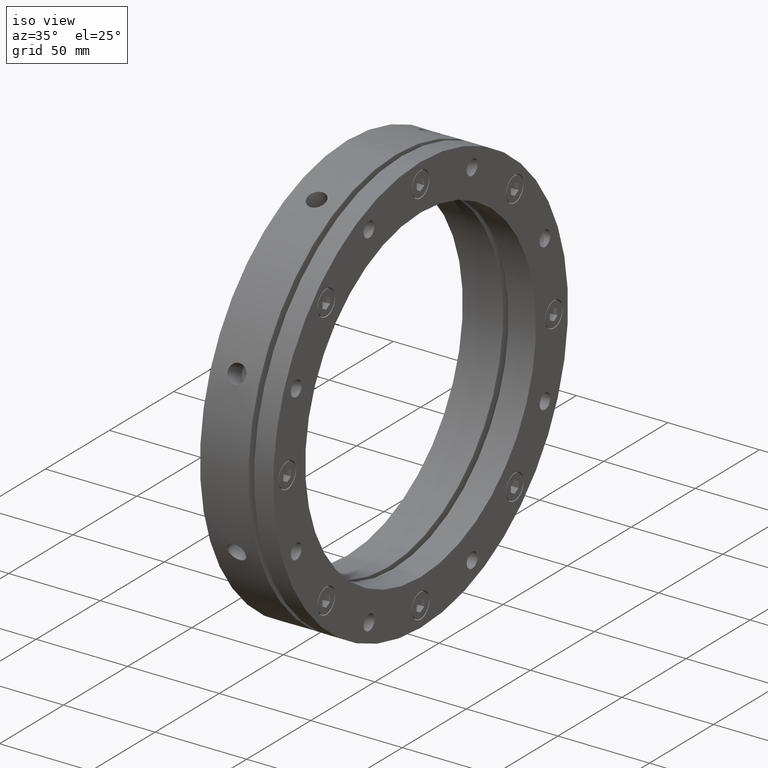
[diagram: clean part render]
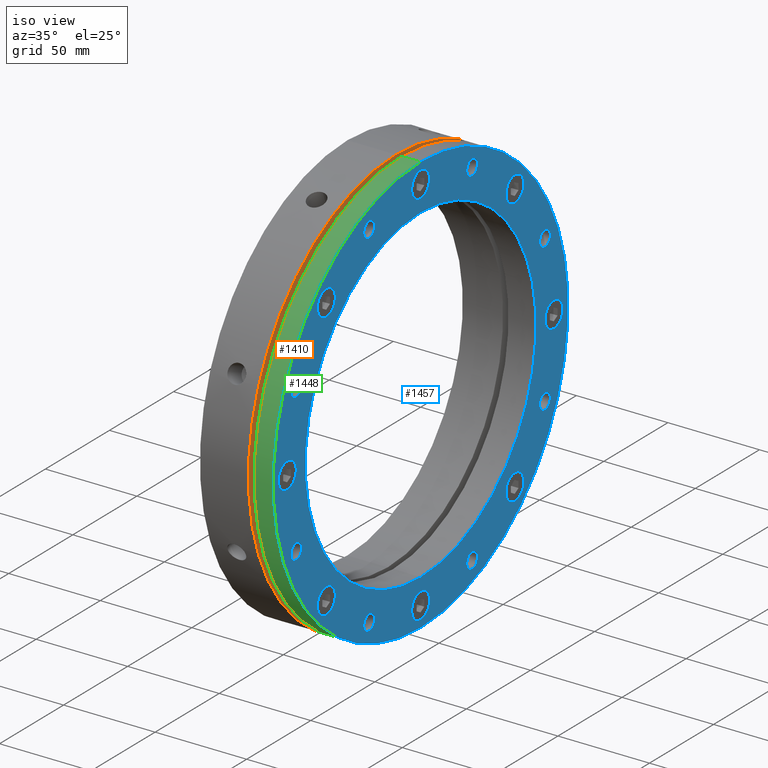
[diagram: same view with three faces highlighted in distinct colors, each labeled with its STEP entity id]
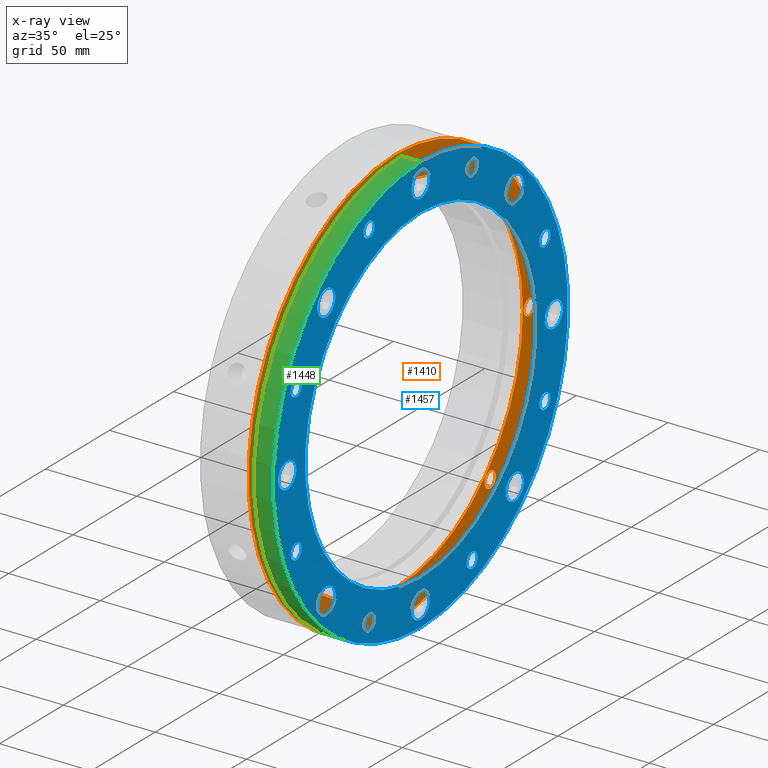
[diagram: x-ray of the same camera — body ghosted, the three highlighted faces saturated]
A machine part, iso view with three faces highlighted in distinct colors.
The next image is the same camera in x-ray (body ghosted, the three faces saturated) — at least one of them is partly hidden behind the body in this view.
Their STEP definitions:

[orange] entity #1410 — the highlighted planar face has unit normal (-1, 0, 0).
#317 = DIRECTION ( 'NONE',  ( -1.000000000000000000, 0.0000000000000000000, 0.0000000000000000000 ) ) ;
#319 = PLANE ( 'NONE',  #5216 ) ;
#321 = CARTESIAN_POINT ( 'NONE',  ( 26.49999999999996800, 107.0000000000000000, 0.0000000000000000000 ) ) ;
#323 = DIRECTION ( 'NONE',  ( 0.0000000000000000000, 0.0000000000000000000, 1.000000000000000000 ) ) ;
#1004 = CARTESIAN_POINT ( 'NONE',  ( 26.49999999999996800, 73.53910524340092500, -69.23910524340095700 ) ) ;
#1005 = CARTESIAN_POINT ( 'NONE',  ( 26.49999999999996800, 104.0000000000000100, 4.299999999999982900 ) ) ;
#1010 = CARTESIAN_POINT ( 'NONE',  ( 26.49999999999996800, 73.53910524340096800, 69.23910524340092800 ) ) ;
#1015 = CARTESIAN_POINT ( 'NONE',  ( 26.49999999999996800, 73.53910524340096800, 77.83910524340093700 ) ) ;
#1023 = CARTESIAN_POINT ( 'NONE',  ( 26.49999999999996800, -73.53910524340095400, -69.23910524340094200 ) ) ;
#1025 = CARTESIAN_POINT ( 'NONE',  ( 26.49999999999996800, -1.723697187636663600E-014, -99.70000000000001700 ) ) ;
#1032 = CARTESIAN_POINT ( 'NONE',  ( 26.49999999999996800, -73.53910524340095400, -77.83910524340095100 ) ) ;
#1033 = CARTESIAN_POINT ( 'NONE',  ( 26.49999999999996800, 0.0000000000000000000, -115.0000000000000000 ) ) ;
#1036 = CARTESIAN_POINT ( 'NONE',  ( 26.49999999999996800, 5.265981236333620400E-016, 108.3000000000000100 ) ) ;
#1054 = CIRCLE ( 'NONE', #4081, 4.299999999999998000 ) ;
#1055 = CIRCLE ( 'NONE', #4088, 4.299999999999999800 ) ;
#1064 = CIRCLE ( 'NONE', #5035, 4.299999999999998000 ) ;
#1111 = CIRCLE ( 'NONE', #4102, 4.299999999999998000 ) ;
#1114 = CIRCLE ( 'NONE', #4098, 4.299999999999998000 ) ;
#1126 = CIRCLE ( 'NONE', #4087, 4.299999999999999800 ) ;
#1130 = CIRCLE ( 'NONE', #4085, 4.299999999999998000 ) ;
#1134 = CIRCLE ( 'NONE', #4083, 4.299999999999998000 ) ;
#1136 = CIRCLE ( 'NONE', #3982, 4.299999999999998000 ) ;
#1137 = CIRCLE ( 'NONE', #3998, 115.0000000000000000 ) ;
#1176 = CIRCLE ( 'NONE', #3977, 115.0000000000000000 ) ;
#1332 = CIRCLE ( 'NONE', #4040, 4.299999999999999800 ) ;
#1410 = ADVANCED_FACE ( 'NONE', ( #5417, #5458, #5473, #5485, #5326, #5303, #5486, #5342, #5467, #5474 ), #319, .F. ) ;
#1614 = CIRCLE ( 'NONE', #3966, 4.299999999999999800 ) ;
#1734 = CARTESIAN_POINT ( 'NONE',  ( 26.49999999999996800, 0.0000000000000000000, 99.70000000000001700 ) ) ;
#1735 = CARTESIAN_POINT ( 'NONE',  ( 26.49999999999996800, 0.0000000000000000000, 99.00000000000000000 ) ) ;
#1739 = CARTESIAN_POINT ( 'NONE',  ( 26.49999999999996800, 1.212400331155879700E-014, -99.00000000000000000 ) ) ;
#1741 = CARTESIAN_POINT ( 'NONE',  ( 26.49999999999996800, 73.53910524340092500, -77.83910524340095100 ) ) ;
#1753 = CARTESIAN_POINT ( 'NONE',  ( 26.49999999999996800, 1.408343819019456100E-014, 115.0000000000000000 ) ) ;
#1766 = CARTESIAN_POINT ( 'NONE',  ( 26.49999999999996800, 104.0000000000000100, -4.300000000000017600 ) ) ;
#1767 = CARTESIAN_POINT ( 'NONE',  ( 26.49999999999996800, -73.53910524340094000, 77.83910524340095100 ) ) ;
#1771 = CARTESIAN_POINT ( 'NONE',  ( 26.49999999999996800, -73.53910524340094000, 69.23910524340095700 ) ) ;
#1772 = CARTESIAN_POINT ( 'NONE',  ( 26.49999999999996800, -1.776356999999999900E-014, -108.3000000000000100 ) ) ;
#1780 = CARTESIAN_POINT ( 'NONE',  ( 26.49999999999996800, -104.0000000000000100, 4.299999999999999800 ) ) ;
#1811 = CARTESIAN_POINT ( 'NONE',  ( 26.49999999999996800, 73.53910524340092500, -73.53910524340095400 ) ) ;
#1812 = DIRECTION ( 'NONE',  ( 1.000000000000000000, 0.0000000000000000000, 0.0000000000000000000 ) ) ;
#1813 = DIRECTION ( 'NONE',  ( 0.0000000000000000000, 0.0000000000000000000, -1.000000000000000000 ) ) ;
#1823 = CARTESIAN_POINT ( 'NONE',  ( 26.49999999999996800, -73.53910524340094000, 73.53910524340095400 ) ) ;
#1824 = DIRECTION ( 'NONE',  ( 1.000000000000000000, 0.0000000000000000000, 0.0000000000000000000 ) ) ;
#1825 = DIRECTION ( 'NONE',  ( 0.0000000000000000000, 0.0000000000000000000, -1.000000000000000000 ) ) ;
#1835 = CARTESIAN_POINT ( 'NONE',  ( 26.49999999999996800, -73.53910524340095400, -73.53910524340094000 ) ) ;
#1836 = DIRECTION ( 'NONE',  ( 1.000000000000000000, 0.0000000000000000000, 0.0000000000000000000 ) ) ;
#1837 = DIRECTION ( 'NONE',  ( 0.0000000000000000000, 0.0000000000000000000, -1.000000000000000000 ) ) ;
#1866 = CARTESIAN_POINT ( 'NONE',  ( 26.49999999999996800, 104.0000000000000100, -1.776356999999999900E-014 ) ) ;
#1867 = DIRECTION ( 'NONE',  ( 1.000000000000000000, 0.0000000000000000000, 0.0000000000000000000 ) ) ;
#1868 = DIRECTION ( 'NONE',  ( 0.0000000000000000000, 0.0000000000000000000, -1.000000000000000000 ) ) ;
#1869 = CARTESIAN_POINT ( 'NONE',  ( 26.49999999999996800, -104.0000000000000100, 0.0000000000000000000 ) ) ;
#1870 = DIRECTION ( 'NONE',  ( 1.000000000000000000, 0.0000000000000000000, 0.0000000000000000000 ) ) ;
#1871 = DIRECTION ( 'NONE',  ( 0.0000000000000000000, 0.0000000000000000000, -1.000000000000000000 ) ) ;
#1875 = CARTESIAN_POINT ( 'NONE',  ( 26.49999999999996800, 0.0000000000000000000, 104.0000000000000100 ) ) ;
#1876 = DIRECTION ( 'NONE',  ( 1.000000000000000000, 0.0000000000000000000, 0.0000000000000000000 ) ) ;
#1877 = DIRECTION ( 'NONE',  ( 0.0000000000000000000, 0.0000000000000000000, -1.000000000000000000 ) ) ;
#1881 = CARTESIAN_POINT ( 'NONE',  ( 26.49999999999996800, -1.776356999999999900E-014, -104.0000000000000100 ) ) ;
#1882 = DIRECTION ( 'NONE',  ( 1.000000000000000000, 0.0000000000000000000, 0.0000000000000000000 ) ) ;
#1883 = DIRECTION ( 'NONE',  ( 0.0000000000000000000, 0.0000000000000000000, -1.000000000000000000 ) ) ;
#1887 = CARTESIAN_POINT ( 'NONE',  ( 26.49999999999996800, 73.53910524340096800, 73.53910524340092500 ) ) ;
#1888 = DIRECTION ( 'NONE',  ( 1.000000000000000000, 0.0000000000000000000, 0.0000000000000000000 ) ) ;
#1889 = DIRECTION ( 'NONE',  ( 0.0000000000000000000, 0.0000000000000000000, -1.000000000000000000 ) ) ;
#2187 = CARTESIAN_POINT ( 'NONE',  ( 26.49999999999996800, 104.0000000000000100, -1.776356999999999900E-014 ) ) ;
#2188 = DIRECTION ( 'NONE',  ( 1.000000000000000000, 0.0000000000000000000, 0.0000000000000000000 ) ) ;
#2189 = DIRECTION ( 'NONE',  ( 0.0000000000000000000, 0.0000000000000000000, -1.000000000000000000 ) ) ;
#2220 = CARTESIAN_POINT ( 'NONE',  ( 26.49999999999996800, -73.53910524340095400, -73.53910524340094000 ) ) ;
#2221 = DIRECTION ( 'NONE',  ( 1.000000000000000000, 0.0000000000000000000, 0.0000000000000000000 ) ) ;
#2222 = DIRECTION ( 'NONE',  ( 0.0000000000000000000, 0.0000000000000000000, -1.000000000000000000 ) ) ;
#2229 = CARTESIAN_POINT ( 'NONE',  ( 26.49999999999996800, 0.0000000000000000000, 104.0000000000000100 ) ) ;
#2230 = DIRECTION ( 'NONE',  ( 1.000000000000000000, 0.0000000000000000000, 0.0000000000000000000 ) ) ;
#2231 = DIRECTION ( 'NONE',  ( 0.0000000000000000000, 0.0000000000000000000, -1.000000000000000000 ) ) ;
#2251 = CARTESIAN_POINT ( 'NONE',  ( 26.49999999999996800, 73.53910524340092500, -73.53910524340095400 ) ) ;
#2252 = DIRECTION ( 'NONE',  ( 1.000000000000000000, 0.0000000000000000000, 0.0000000000000000000 ) ) ;
#2253 = DIRECTION ( 'NONE',  ( 0.0000000000000000000, 0.0000000000000000000, -1.000000000000000000 ) ) ;
#2267 = CARTESIAN_POINT ( 'NONE',  ( 26.49999999999996800, 0.0000000000000000000, 0.0000000000000000000 ) ) ;
#2268 = DIRECTION ( 'NONE',  ( 1.000000000000000000, -0.0000000000000000000, -0.0000000000000000000 ) ) ;
#2269 = DIRECTION ( 'NONE',  ( 0.0000000000000000000, 0.0000000000000000000, 1.000000000000000000 ) ) ;
#2270 = CARTESIAN_POINT ( 'NONE',  ( 26.49999999999996800, 0.0000000000000000000, 0.0000000000000000000 ) ) ;
#2271 = DIRECTION ( 'NONE',  ( 1.000000000000000000, -0.0000000000000000000, -0.0000000000000000000 ) ) ;
#2272 = DIRECTION ( 'NONE',  ( 0.0000000000000000000, 0.0000000000000000000, 1.000000000000000000 ) ) ;
#2393 = CARTESIAN_POINT ( 'NONE',  ( 26.49999999999996800, -73.53910524340094000, 73.53910524340095400 ) ) ;
#2394 = DIRECTION ( 'NONE',  ( 1.000000000000000000, 0.0000000000000000000, 0.0000000000000000000 ) ) ;
#2395 = DIRECTION ( 'NONE',  ( 0.0000000000000000000, 0.0000000000000000000, -1.000000000000000000 ) ) ;
#2475 = CARTESIAN_POINT ( 'NONE',  ( 26.49999999999996800, -1.776356999999999900E-014, -104.0000000000000100 ) ) ;
#2476 = DIRECTION ( 'NONE',  ( 1.000000000000000000, 0.0000000000000000000, 0.0000000000000000000 ) ) ;
#2477 = DIRECTION ( 'NONE',  ( 0.0000000000000000000, 0.0000000000000000000, -1.000000000000000000 ) ) ;
#2639 = CARTESIAN_POINT ( 'NONE',  ( 26.49999999999996800, 0.0000000000000000000, 0.0000000000000000000 ) ) ;
#2640 = DIRECTION ( 'NONE',  ( -1.000000000000000000, -0.0000000000000000000, -0.0000000000000000000 ) ) ;
#2641 = DIRECTION ( 'NONE',  ( 0.0000000000000000000, 0.0000000000000000000, -1.000000000000000000 ) ) ;
#2710 = CARTESIAN_POINT ( 'NONE',  ( 26.49999999999996800, 73.53910524340096800, 73.53910524340092500 ) ) ;
#2711 = DIRECTION ( 'NONE',  ( 1.000000000000000000, 0.0000000000000000000, 0.0000000000000000000 ) ) ;
#2712 = DIRECTION ( 'NONE',  ( 0.0000000000000000000, 0.0000000000000000000, -1.000000000000000000 ) ) ;
#2812 = CARTESIAN_POINT ( 'NONE',  ( 26.49999999999996800, 0.0000000000000000000, 0.0000000000000000000 ) ) ;
#2813 = DIRECTION ( 'NONE',  ( -1.000000000000000000, -0.0000000000000000000, -0.0000000000000000000 ) ) ;
#2814 = DIRECTION ( 'NONE',  ( 0.0000000000000000000, 0.0000000000000000000, -1.000000000000000000 ) ) ;
#3039 = CARTESIAN_POINT ( 'NONE',  ( 26.49999999999996800, -104.0000000000000100, 0.0000000000000000000 ) ) ;
#3040 = DIRECTION ( 'NONE',  ( 1.000000000000000000, 0.0000000000000000000, 0.0000000000000000000 ) ) ;
#3041 = DIRECTION ( 'NONE',  ( 0.0000000000000000000, 0.0000000000000000000, -1.000000000000000000 ) ) ;
#3560 = EDGE_LOOP ( 'NONE', ( #4585, #4662 ) ) ;
#3561 = EDGE_LOOP ( 'NONE', ( #4626, #4600 ) ) ;
#3562 = EDGE_LOOP ( 'NONE', ( #4580, #4627 ) ) ;
#3587 = EDGE_LOOP ( 'NONE', ( #4599, #4517 ) ) ;
#3708 = EDGE_LOOP ( 'NONE', ( #4620, #4467 ) ) ;
#3714 = EDGE_LOOP ( 'NONE', ( #4621, #4623 ) ) ;
#3718 = EDGE_LOOP ( 'NONE', ( #4611, #4536 ) ) ;
#3723 = EDGE_LOOP ( 'NONE', ( #4461, #4493 ) ) ;
#3802 = EDGE_LOOP ( 'NONE', ( #4595, #4531 ) ) ;
#3817 = EDGE_LOOP ( 'NONE', ( #4677, #4624 ) ) ;
#3966 = AXIS2_PLACEMENT_3D ( 'NONE', #3039, #3040, #3041 ) ;
#3977 = AXIS2_PLACEMENT_3D ( 'NONE', #2812, #2813, #2814 ) ;
#3982 = AXIS2_PLACEMENT_3D ( 'NONE', #2710, #2711, #2712 ) ;
#3998 = AXIS2_PLACEMENT_3D ( 'NONE', #2639, #2640, #2641 ) ;
#4001 = AXIS2_PLACEMENT_3D ( 'NONE', #2475, #2476, #2477 ) ;
#4009 = AXIS2_PLACEMENT_3D ( 'NONE', #2393, #2394, #2395 ) ;
#4027 = AXIS2_PLACEMENT_3D ( 'NONE', #2270, #2271, #2272 ) ;
#4028 = AXIS2_PLACEMENT_3D ( 'NONE', #2267, #2268, #2269 ) ;
#4030 = AXIS2_PLACEMENT_3D ( 'NONE', #2251, #2252, #2253 ) ;
#4034 = AXIS2_PLACEMENT_3D ( 'NONE', #2229, #2230, #2231 ) ;
#4036 = AXIS2_PLACEMENT_3D ( 'NONE', #2220, #2221, #2222 ) ;
#4040 = AXIS2_PLACEMENT_3D ( 'NONE', #2187, #2188, #2189 ) ;
#4081 = AXIS2_PLACEMENT_3D ( 'NONE', #1887, #1888, #1889 ) ;
#4083 = AXIS2_PLACEMENT_3D ( 'NONE', #1881, #1882, #1883 ) ;
#4085 = AXIS2_PLACEMENT_3D ( 'NONE', #1875, #1876, #1877 ) ;
#4087 = AXIS2_PLACEMENT_3D ( 'NONE', #1869, #1870, #1871 ) ;
#4088 = AXIS2_PLACEMENT_3D ( 'NONE', #1866, #1867, #1868 ) ;
#4098 = AXIS2_PLACEMENT_3D ( 'NONE', #1835, #1836, #1837 ) ;
#4102 = AXIS2_PLACEMENT_3D ( 'NONE', #1823, #1824, #1825 ) ;
#4452 = CIRCLE ( 'NONE', #4001, 4.299999999999998000 ) ;
#4458 = CIRCLE ( 'NONE', #4009, 4.299999999999998000 ) ;
#4461 = ORIENTED_EDGE ( 'NONE', *, *, #5542, .F. ) ;
#4467 = ORIENTED_EDGE ( 'NONE', *, *, #5645, .F. ) ;
#4493 = ORIENTED_EDGE ( 'NONE', *, *, #5707, .F. ) ;
#4517 = ORIENTED_EDGE ( 'NONE', *, *, #5653, .F. ) ;
#4531 = ORIENTED_EDGE ( 'NONE', *, *, #5618, .F. ) ;
#4536 = ORIENTED_EDGE ( 'NONE', *, *, #5633, .F. ) ;
#4580 = ORIENTED_EDGE ( 'NONE', *, *, #5540, .F. ) ;
#4585 = ORIENTED_EDGE ( 'NONE', *, *, #5537, .F. ) ;
#4595 = ORIENTED_EDGE ( 'NONE', *, *, #5536, .F. ) ;
#4599 = ORIENTED_EDGE ( 'NONE', *, *, #5654, .F. ) ;
#4600 = ORIENTED_EDGE ( 'NONE', *, *, #5688, .F. ) ;
#4611 = ORIENTED_EDGE ( 'NONE', *, *, #5526, .F. ) ;
#4620 = ORIENTED_EDGE ( 'NONE', *, *, #5517, .F. ) ;
#4621 = ORIENTED_EDGE ( 'NONE', *, *, #5544, .F. ) ;
#4623 = ORIENTED_EDGE ( 'NONE', *, *, #5743, .F. ) ;
#4624 = ORIENTED_EDGE ( 'NONE', *, *, #5756, .F. ) ;
#4626 = ORIENTED_EDGE ( 'NONE', *, *, #5522, .F. ) ;
#4627 = ORIENTED_EDGE ( 'NONE', *, *, #5637, .F. ) ;
#4662 = ORIENTED_EDGE ( 'NONE', *, *, #5792, .F. ) ;
#4677 = ORIENTED_EDGE ( 'NONE', *, *, #5717, .F. ) ;
#5035 = AXIS2_PLACEMENT_3D ( 'NONE', #1811, #1812, #1813 ) ;
#5216 = AXIS2_PLACEMENT_3D ( 'NONE', #321, #317, #323 ) ;
#5297 = VERTEX_POINT ( 'NONE', #1004 ) ;
#5298 = VERTEX_POINT ( 'NONE', #1005 ) ;
#5303 = FACE_BOUND ( 'NONE', #3723, .T. ) ;
#5304 = VERTEX_POINT ( 'NONE', #1010 ) ;
#5311 = VERTEX_POINT ( 'NONE', #1015 ) ;
#5321 = VERTEX_POINT ( 'NONE', #1023 ) ;
#5323 = VERTEX_POINT ( 'NONE', #1025 ) ;
#5326 = FACE_BOUND ( 'NONE', #3718, .T. ) ;
#5338 = VERTEX_POINT ( 'NONE', #1032 ) ;
#5339 = VERTEX_POINT ( 'NONE', #1033 ) ;
#5342 = FACE_BOUND ( 'NONE', #3802, .T. ) ;
#5343 = VERTEX_POINT ( 'NONE', #1036 ) ;
#5382 = VERTEX_POINT ( 'NONE', #5864 ) ;
#5390 = VERTEX_POINT ( 'NONE', #1734 ) ;
#5391 = VERTEX_POINT ( 'NONE', #1735 ) ;
#5398 = VERTEX_POINT ( 'NONE', #1739 ) ;
#5403 = VERTEX_POINT ( 'NONE', #1741 ) ;
#5417 = FACE_BOUND ( 'NONE', #3587, .T. ) ;
#5424 = VERTEX_POINT ( 'NONE', #1753 ) ;
#5451 = VERTEX_POINT ( 'NONE', #1766 ) ;
#5452 = VERTEX_POINT ( 'NONE', #1767 ) ;
#5458 = FACE_BOUND ( 'NONE', #3562, .T. ) ;
#5459 = VERTEX_POINT ( 'NONE', #1771 ) ;
#5460 = VERTEX_POINT ( 'NONE', #1772 ) ;
#5467 = FACE_BOUND ( 'NONE', #3714, .T. ) ;
#5473 = FACE_BOUND ( 'NONE', #3561, .T. ) ;
#5474 = FACE_OUTER_BOUND ( 'NONE', #3817, .T. ) ;
#5476 = VERTEX_POINT ( 'NONE', #1780 ) ;
#5485 = FACE_BOUND ( 'NONE', #3560, .T. ) ;
#5486 = FACE_BOUND ( 'NONE', #3708, .T. ) ;
#5517 = EDGE_CURVE ( 'NONE', #5403, #5297, #1064, .T. ) ;
#5522 = EDGE_CURVE ( 'NONE', #5459, #5452, #1111, .T. ) ;
#5526 = EDGE_CURVE ( 'NONE', #5338, #5321, #1114, .T. ) ;
#5536 = EDGE_CURVE ( 'NONE', #5451, #5298, #1055, .T. ) ;
#5537 = EDGE_CURVE ( 'NONE', #5382, #5476, #1126, .T. ) ;
#5540 = EDGE_CURVE ( 'NONE', #5390, #5343, #1130, .T. ) ;
#5542 = EDGE_CURVE ( 'NONE', #5460, #5323, #1134, .T. ) ;
#5544 = EDGE_CURVE ( 'NONE', #5304, #5311, #1054, .T. ) ;
#5618 = EDGE_CURVE ( 'NONE', #5298, #5451, #1332, .T. ) ;
#5633 = EDGE_CURVE ( 'NONE', #5321, #5338, #5871, .T. ) ;
#5637 = EDGE_CURVE ( 'NONE', #5343, #5390, #5890, .T. ) ;
#5645 = EDGE_CURVE ( 'NONE', #5297, #5403, #5917, .T. ) ;
#5653 = EDGE_CURVE ( 'NONE', #5398, #5391, #5876, .T. ) ;
#5654 = EDGE_CURVE ( 'NONE', #5391, #5398, #5874, .T. ) ;
#5688 = EDGE_CURVE ( 'NONE', #5452, #5459, #4458, .T. ) ;
#5707 = EDGE_CURVE ( 'NONE', #5323, #5460, #4452, .T. ) ;
#5717 = EDGE_CURVE ( 'NONE', #5339, #5424, #1137, .T. ) ;
#5743 = EDGE_CURVE ( 'NONE', #5311, #5304, #1136, .T. ) ;
#5756 = EDGE_CURVE ( 'NONE', #5424, #5339, #1176, .T. ) ;
#5792 = EDGE_CURVE ( 'NONE', #5476, #5382, #1614, .T. ) ;
#5864 = CARTESIAN_POINT ( 'NONE',  ( 26.49999999999996800, -104.0000000000000100, -4.299999999999999800 ) ) ;
#5871 = CIRCLE ( 'NONE', #4036, 4.299999999999998000 ) ;
#5874 = CIRCLE ( 'NONE', #4027, 99.00000000000000000 ) ;
#5876 = CIRCLE ( 'NONE', #4028, 99.00000000000000000 ) ;
#5890 = CIRCLE ( 'NONE', #4034, 4.299999999999998000 ) ;
#5917 = CIRCLE ( 'NONE', #4030, 4.299999999999998000 ) ;

[blue] entity #1457 — the highlighted planar face has unit normal (1, 0, 0).
#1 = CIRCLE ( 'NONE', #3944, 115.0000000000000000 ) ;
#2 = CIRCLE ( 'NONE', #3938, 7.000000000000006200 ) ;
#3 = CIRCLE ( 'NONE', #3940, 7.000000000000006200 ) ;
#36 = CIRCLE ( 'NONE', #3936, 7.000000000000000900 ) ;
#37 = CIRCLE ( 'NONE', #3934, 7.000000000000006200 ) ;
#43 = CIRCLE ( 'NONE', #3932, 7.000000000000006200 ) ;
#49 = CIRCLE ( 'NONE', #3930, 7.000000000000006200 ) ;
#55 = CIRCLE ( 'NONE', #3928, 7.000000000000000900 ) ;
#61 = CIRCLE ( 'NONE', #3926, 7.000000000000006200 ) ;
#468 = DIRECTION ( 'NONE',  ( 1.000000000000000000, -0.0000000000000000000, 0.0000000000000000000 ) ) ;
#471 = CARTESIAN_POINT ( 'NONE',  ( 39.99999999999997200, 102.5000000000000100, 0.0000000000000000000 ) ) ;
#473 = PLANE ( 'NONE',  #5169 ) ;
#475 = DIRECTION ( 'NONE',  ( 0.0000000000000000000, 0.0000000000000000000, -1.000000000000000000 ) ) ;
#803 = CARTESIAN_POINT ( 'NONE',  ( 39.99999999999997200, -40.18176039833449700, 101.2073509136850800 ) ) ;
#811 = CARTESIAN_POINT ( 'NONE',  ( 39.99999999999997200, -97.00735091368513000, 44.38176039833435700 ) ) ;
#816 = CARTESIAN_POINT ( 'NONE',  ( 39.99999999999997200, -97.00735091368507300, -35.98176039833450100 ) ) ;
#817 = CARTESIAN_POINT ( 'NONE',  ( 39.99999999999997200, 97.00735091368513000, -35.98176039833435900 ) ) ;
#818 = CARTESIAN_POINT ( 'NONE',  ( 39.99999999999997200, -40.18176039833435500, -92.80735091368514100 ) ) ;
#819 = CARTESIAN_POINT ( 'NONE',  ( 39.99999999999997900, 1.102182119232617900E-014, 90.00000000000000000 ) ) ;
#821 = CARTESIAN_POINT ( 'NONE',  ( 39.99999999999997200, -97.00735091368507300, -44.38176039833450700 ) ) ;
#826 = CARTESIAN_POINT ( 'NONE',  ( 39.99999999999997200, -40.18176039833435500, -101.2073509136851300 ) ) ;
#827 = CARTESIAN_POINT ( 'NONE',  ( 39.99999999999997200, 73.53910524340092500, -66.53910524340095400 ) ) ;
#828 = CARTESIAN_POINT ( 'NONE',  ( 39.99999999999997200, -40.18176039833449700, 92.80735091368508400 ) ) ;
#830 = CARTESIAN_POINT ( 'NONE',  ( 39.99999999999997200, 104.0000000000000100, -7.000000000000018700 ) ) ;
#831 = CARTESIAN_POINT ( 'NONE',  ( 39.99999999999997200, 73.53910524340096800, 80.53910524340094000 ) ) ;
#836 = CARTESIAN_POINT ( 'NONE',  ( 39.99999999999997200, 8.572527594031467300E-016, 111.0000000000000100 ) ) ;
#837 = CARTESIAN_POINT ( 'NONE',  ( 39.99999999999997200, 1.408343819019456100E-014, 115.0000000000000000 ) ) ;
#840 = CARTESIAN_POINT ( 'NONE',  ( 39.99999999999997200, 0.0000000000000000000, 97.00000000000000000 ) ) ;
#843 = CARTESIAN_POINT ( 'NONE',  ( 39.99999999999997200, -104.0000000000000100, 7.000000000000000900 ) ) ;
#845 = CARTESIAN_POINT ( 'NONE',  ( 39.99999999999997200, 73.53910524340096800, 66.53910524340092500 ) ) ;
#846 = CARTESIAN_POINT ( 'NONE',  ( 39.99999999999997200, 73.53910524340092500, -80.53910524340096800 ) ) ;
#847 = CARTESIAN_POINT ( 'NONE',  ( 39.99999999999997200, -97.00735091368513000, 35.98176039833435200 ) ) ;
#850 = CARTESIAN_POINT ( 'NONE',  ( 39.99999999999997200, -73.53910524340095400, -80.53910524340095400 ) ) ;
#854 = CARTESIAN_POINT ( 'NONE',  ( 39.99999999999997200, -1.776356999999999900E-014, -111.0000000000000100 ) ) ;
#861 = CARTESIAN_POINT ( 'NONE',  ( 39.99999999999997200, -1.690631724059685000E-014, -97.00000000000000000 ) ) ;
#862 = CARTESIAN_POINT ( 'NONE',  ( 39.99999999999997200, 97.00735091368507300, 35.98176039833447200 ) ) ;
#863 = CARTESIAN_POINT ( 'NONE',  ( 39.99999999999997200, 97.00735091368513000, -44.38176039833436400 ) ) ;
#867 = CARTESIAN_POINT ( 'NONE',  ( 39.99999999999997200, 40.18176039833447500, -92.80735091368508400 ) ) ;
#869 = CARTESIAN_POINT ( 'NONE',  ( 39.99999999999997200, -73.53910524340094000, 80.53910524340096800 ) ) ;
#872 = CARTESIAN_POINT ( 'NONE',  ( 39.99999999999997900, 0.0000000000000000000, -90.00000000000000000 ) ) ;
#875 = CARTESIAN_POINT ( 'NONE',  ( 39.99999999999997200, 40.18176039833438300, 101.2073509136851300 ) ) ;
#876 = CARTESIAN_POINT ( 'NONE',  ( 39.99999999999997200, 104.0000000000000100, 6.999999999999984000 ) ) ;
#877 = CARTESIAN_POINT ( 'NONE',  ( 39.99999999999997200, 40.18176039833447500, -101.2073509136850800 ) ) ;
#878 = CARTESIAN_POINT ( 'NONE',  ( 39.99999999999997200, 97.00735091368507300, 44.38176039833447800 ) ) ;
#885 = CARTESIAN_POINT ( 'NONE',  ( 39.99999999999997200, 40.18176039833438300, 92.80735091368514100 ) ) ;
#887 = CARTESIAN_POINT ( 'NONE',  ( 39.99999999999997200, 0.0000000000000000000, -115.0000000000000000 ) ) ;
#890 = CARTESIAN_POINT ( 'NONE',  ( 39.99999999999997200, -73.53910524340095400, -66.53910524340094000 ) ) ;
#895 = CARTESIAN_POINT ( 'NONE',  ( 39.99999999999997200, -73.53910524340094000, 66.53910524340095400 ) ) ;
#897 = CARTESIAN_POINT ( 'NONE',  ( 39.99999999999997200, -104.0000000000000100, -7.000000000000000900 ) ) ;
#1052 = CIRCLE ( 'NONE', #4066, 7.000000000000000900 ) ;
#1057 = CIRCLE ( 'NONE', #4086, 7.000000000000006200 ) ;
#1059 = CIRCLE ( 'NONE', #4100, 7.000000000000006200 ) ;
#1068 = CIRCLE ( 'NONE', #4065, 4.199999999999995700 ) ;
#1070 = CIRCLE ( 'NONE', #5037, 7.000000000000000900 ) ;
#1075 = CIRCLE ( 'NONE', #4071, 7.000000000000006200 ) ;
#1088 = CIRCLE ( 'NONE', #4096, 90.00000000000000000 ) ;
#1100 = CIRCLE ( 'NONE', #4068, 4.199999999999995700 ) ;
#1102 = CIRCLE ( 'NONE', #4095, 115.0000000000000000 ) ;
#1106 = CIRCLE ( 'NONE', #4089, 7.000000000000006200 ) ;
#1113 = CIRCLE ( 'NONE', #4097, 7.000000000000006200 ) ;
#1120 = CIRCLE ( 'NONE', #4099, 7.000000000000006200 ) ;
#1125 = CIRCLE ( 'NONE', #4070, 4.200000000000002000 ) ;
#1129 = CIRCLE ( 'NONE', #4069, 4.200000000000002000 ) ;
#1152 = CIRCLE ( 'NONE', #3981, 4.199999999999995700 ) ;
#1195 = CIRCLE ( 'NONE', #3976, 4.200000000000002000 ) ;
#1329 = CIRCLE ( 'NONE', #4045, 4.199999999999995700 ) ;
#1330 = CIRCLE ( 'NONE', #4043, 4.200000000000002000 ) ;
#1344 = CIRCLE ( 'NONE', #4041, 4.199999999999995700 ) ;
#1457 = ADVANCED_FACE ( 'NONE', ( #3486, #3506, #3455, #3480, #3452, #3549, #3513, #3478, #3487, #3516, #3491, #3543, #3492, #3481, #3548, #3550, #3454, #3470 ), #473, .T. ) ;
#1597 = CIRCLE ( 'NONE', #3974, 4.200000000000002000 ) ;
#1805 = CARTESIAN_POINT ( 'NONE',  ( 39.99999999999997200, -104.0000000000000100, 0.0000000000000000000 ) ) ;
#1806 = DIRECTION ( 'NONE',  ( -1.000000000000000000, -0.0000000000000000000, -0.0000000000000000000 ) ) ;
#1807 = DIRECTION ( 'NONE',  ( 0.0000000000000000000, 0.0000000000000000000, -1.000000000000000000 ) ) ;
#1829 = CARTESIAN_POINT ( 'NONE',  ( 39.99999999999997200, -73.53910524340094000, 73.53910524340095400 ) ) ;
#1830 = DIRECTION ( 'NONE',  ( -1.000000000000000000, -0.0000000000000000000, -0.0000000000000000000 ) ) ;
#1831 = DIRECTION ( 'NONE',  ( 0.0000000000000000000, 0.0000000000000000000, -1.000000000000000000 ) ) ;
#1832 = CARTESIAN_POINT ( 'NONE',  ( 39.99999999999997200, -73.53910524340095400, -73.53910524340094000 ) ) ;
#1833 = DIRECTION ( 'NONE',  ( -1.000000000000000000, -0.0000000000000000000, -0.0000000000000000000 ) ) ;
#1834 = DIRECTION ( 'NONE',  ( 0.0000000000000000000, 0.0000000000000000000, -1.000000000000000000 ) ) ;
#1838 = CARTESIAN_POINT ( 'NONE',  ( 39.99999999999997200, 0.0000000000000000000, 104.0000000000000100 ) ) ;
#1839 = DIRECTION ( 'NONE',  ( -1.000000000000000000, -0.0000000000000000000, -0.0000000000000000000 ) ) ;
#1840 = DIRECTION ( 'NONE',  ( 0.0000000000000000000, 0.0000000000000000000, -1.000000000000000000 ) ) ;
#1841 = CARTESIAN_POINT ( 'NONE',  ( 39.99999999999997900, 0.0000000000000000000, 0.0000000000000000000 ) ) ;
#1842 = DIRECTION ( 'NONE',  ( -1.000000000000000000, -0.0000000000000000000, -0.0000000000000000000 ) ) ;
#1843 = DIRECTION ( 'NONE',  ( 0.0000000000000000000, 0.0000000000000000000, -1.000000000000000000 ) ) ;
#1845 = CARTESIAN_POINT ( 'NONE',  ( 39.99999999999997200, 0.0000000000000000000, 0.0000000000000000000 ) ) ;
#1846 = DIRECTION ( 'NONE',  ( -1.000000000000000000, -0.0000000000000000000, -0.0000000000000000000 ) ) ;
#1847 = DIRECTION ( 'NONE',  ( 0.0000000000000000000, 0.0000000000000000000, -1.000000000000000000 ) ) ;
#1863 = CARTESIAN_POINT ( 'NONE',  ( 39.99999999999997200, -1.776356999999999900E-014, -104.0000000000000100 ) ) ;
#1864 = DIRECTION ( 'NONE',  ( -1.000000000000000000, -0.0000000000000000000, -0.0000000000000000000 ) ) ;
#1865 = DIRECTION ( 'NONE',  ( 0.0000000000000000000, 0.0000000000000000000, -1.000000000000000000 ) ) ;
#1872 = CARTESIAN_POINT ( 'NONE',  ( 39.99999999999997200, 73.53910524340096800, 73.53910524340092500 ) ) ;
#1873 = DIRECTION ( 'NONE',  ( -1.000000000000000000, -0.0000000000000000000, -0.0000000000000000000 ) ) ;
#1874 = DIRECTION ( 'NONE',  ( 0.0000000000000000000, 0.0000000000000000000, -1.000000000000000000 ) ) ;
#1917 = CARTESIAN_POINT ( 'NONE',  ( 39.99999999999997200, 73.53910524340092500, -73.53910524340095400 ) ) ;
#1918 = DIRECTION ( 'NONE',  ( -1.000000000000000000, -0.0000000000000000000, -0.0000000000000000000 ) ) ;
#1919 = DIRECTION ( 'NONE',  ( 0.0000000000000000000, 0.0000000000000000000, -1.000000000000000000 ) ) ;
#1920 = CARTESIAN_POINT ( 'NONE',  ( 39.99999999999997200, -97.00735091368507300, -40.18176039833450400 ) ) ;
#1921 = DIRECTION ( 'NONE',  ( -1.000000000000000000, -0.0000000000000000000, -0.0000000000000000000 ) ) ;
#1922 = DIRECTION ( 'NONE',  ( 0.0000000000000000000, 0.0000000000000000000, -1.000000000000000000 ) ) ;
#1923 = CARTESIAN_POINT ( 'NONE',  ( 39.99999999999997200, -97.00735091368513000, 40.18176039833435500 ) ) ;
#1924 = DIRECTION ( 'NONE',  ( -1.000000000000000000, -0.0000000000000000000, -0.0000000000000000000 ) ) ;
#1925 = DIRECTION ( 'NONE',  ( 0.0000000000000000000, 0.0000000000000000000, -1.000000000000000000 ) ) ;
#1926 = CARTESIAN_POINT ( 'NONE',  ( 39.99999999999997200, -40.18176039833449700, 97.00735091368507300 ) ) ;
#1927 = DIRECTION ( 'NONE',  ( -1.000000000000000000, -0.0000000000000000000, -0.0000000000000000000 ) ) ;
#1928 = DIRECTION ( 'NONE',  ( 0.0000000000000000000, 0.0000000000000000000, -1.000000000000000000 ) ) ;
#1933 = CARTESIAN_POINT ( 'NONE',  ( 39.99999999999997200, 104.0000000000000100, -1.776356999999999900E-014 ) ) ;
#1934 = DIRECTION ( 'NONE',  ( -1.000000000000000000, -0.0000000000000000000, -0.0000000000000000000 ) ) ;
#1935 = DIRECTION ( 'NONE',  ( 0.0000000000000000000, 0.0000000000000000000, -1.000000000000000000 ) ) ;
#1936 = CARTESIAN_POINT ( 'NONE',  ( 39.99999999999997200, -40.18176039833449700, 97.00735091368507300 ) ) ;
#1937 = DIRECTION ( 'NONE',  ( -1.000000000000000000, -0.0000000000000000000, -0.0000000000000000000 ) ) ;
#1938 = DIRECTION ( 'NONE',  ( 0.0000000000000000000, 0.0000000000000000000, -1.000000000000000000 ) ) ;
#2165 = CARTESIAN_POINT ( 'NONE',  ( 39.99999999999997200, 40.18176039833447500, -97.00735091368507300 ) ) ;
#2166 = DIRECTION ( 'NONE',  ( -1.000000000000000000, -0.0000000000000000000, -0.0000000000000000000 ) ) ;
#2167 = DIRECTION ( 'NONE',  ( 0.0000000000000000000, 0.0000000000000000000, -1.000000000000000000 ) ) ;
#2174 = CARTESIAN_POINT ( 'NONE',  ( 39.99999999999997200, 97.00735091368513000, -40.18176039833436200 ) ) ;
#2175 = DIRECTION ( 'NONE',  ( -1.000000000000000000, -0.0000000000000000000, -0.0000000000000000000 ) ) ;
#2176 = DIRECTION ( 'NONE',  ( 0.0000000000000000000, 0.0000000000000000000, -1.000000000000000000 ) ) ;
#2182 = CARTESIAN_POINT ( 'NONE',  ( 39.99999999999997200, 40.18176039833447500, -97.00735091368507300 ) ) ;
#2183 = DIRECTION ( 'NONE',  ( -1.000000000000000000, -0.0000000000000000000, -0.0000000000000000000 ) ) ;
#2184 = DIRECTION ( 'NONE',  ( 0.0000000000000000000, 0.0000000000000000000, -1.000000000000000000 ) ) ;
#2207 = CARTESIAN_POINT ( 'NONE',  ( 39.99999999999997200, 97.00735091368507300, 40.18176039833447500 ) ) ;
#2208 = DIRECTION ( 'NONE',  ( -1.000000000000000000, -0.0000000000000000000, -0.0000000000000000000 ) ) ;
#2209 = DIRECTION ( 'NONE',  ( 0.0000000000000000000, 0.0000000000000000000, -1.000000000000000000 ) ) ;
#2225 = CARTESIAN_POINT ( 'NONE',  ( 39.99999999999997200, -97.00735091368507300, -40.18176039833450400 ) ) ;
#2226 = DIRECTION ( 'NONE',  ( -1.000000000000000000, -0.0000000000000000000, -0.0000000000000000000 ) ) ;
#2227 = DIRECTION ( 'NONE',  ( 0.0000000000000000000, 0.0000000000000000000, -1.000000000000000000 ) ) ;
#2291 = CARTESIAN_POINT ( 'NONE',  ( 39.99999999999997200, -40.18176039833435500, -97.00735091368513000 ) ) ;
#2292 = DIRECTION ( 'NONE',  ( -1.000000000000000000, -0.0000000000000000000, -0.0000000000000000000 ) ) ;
#2293 = DIRECTION ( 'NONE',  ( 0.0000000000000000000, 0.0000000000000000000, -1.000000000000000000 ) ) ;
#2368 = CARTESIAN_POINT ( 'NONE',  ( 39.99999999999997200, 40.18176039833438300, 97.00735091368513000 ) ) ;
#2369 = DIRECTION ( 'NONE',  ( -1.000000000000000000, -0.0000000000000000000, -0.0000000000000000000 ) ) ;
#2370 = DIRECTION ( 'NONE',  ( 0.0000000000000000000, 0.0000000000000000000, -1.000000000000000000 ) ) ;
#2415 = CARTESIAN_POINT ( 'NONE',  ( 39.99999999999997200, 40.18176039833438300, 97.00735091368513000 ) ) ;
#2416 = DIRECTION ( 'NONE',  ( -1.000000000000000000, -0.0000000000000000000, -0.0000000000000000000 ) ) ;
#2417 = DIRECTION ( 'NONE',  ( 0.0000000000000000000, 0.0000000000000000000, -1.000000000000000000 ) ) ;
#2722 = CARTESIAN_POINT ( 'NONE',  ( 39.99999999999997200, -40.18176039833435500, -97.00735091368513000 ) ) ;
#2723 = DIRECTION ( 'NONE',  ( -1.000000000000000000, -0.0000000000000000000, -0.0000000000000000000 ) ) ;
#2724 = DIRECTION ( 'NONE',  ( 0.0000000000000000000, 0.0000000000000000000, -1.000000000000000000 ) ) ;
#2821 = CARTESIAN_POINT ( 'NONE',  ( 39.99999999999997200, 97.00735091368513000, -40.18176039833436200 ) ) ;
#2822 = DIRECTION ( 'NONE',  ( -1.000000000000000000, -0.0000000000000000000, -0.0000000000000000000 ) ) ;
#2823 = DIRECTION ( 'NONE',  ( 0.0000000000000000000, 0.0000000000000000000, -1.000000000000000000 ) ) ;
#2831 = CARTESIAN_POINT ( 'NONE',  ( 39.99999999999997200, -97.00735091368513000, 40.18176039833435500 ) ) ;
#2832 = DIRECTION ( 'NONE',  ( -1.000000000000000000, -0.0000000000000000000, -0.0000000000000000000 ) ) ;
#2833 = DIRECTION ( 'NONE',  ( 0.0000000000000000000, 0.0000000000000000000, -1.000000000000000000 ) ) ;
#3098 = CARTESIAN_POINT ( 'NONE',  ( 39.99999999999997200, 97.00735091368507300, 40.18176039833447500 ) ) ;
#3099 = DIRECTION ( 'NONE',  ( -1.000000000000000000, -0.0000000000000000000, -0.0000000000000000000 ) ) ;
#3100 = DIRECTION ( 'NONE',  ( 0.0000000000000000000, 0.0000000000000000000, -1.000000000000000000 ) ) ;
#3192 = CARTESIAN_POINT ( 'NONE',  ( 39.99999999999997200, 0.0000000000000000000, 0.0000000000000000000 ) ) ;
#3193 = DIRECTION ( 'NONE',  ( -1.000000000000000000, -0.0000000000000000000, -0.0000000000000000000 ) ) ;
#3194 = DIRECTION ( 'NONE',  ( 0.0000000000000000000, 0.0000000000000000000, -1.000000000000000000 ) ) ;
#3203 = CARTESIAN_POINT ( 'NONE',  ( 39.99999999999997900, 0.0000000000000000000, 0.0000000000000000000 ) ) ;
#3204 = DIRECTION ( 'NONE',  ( -1.000000000000000000, -0.0000000000000000000, -0.0000000000000000000 ) ) ;
#3205 = DIRECTION ( 'NONE',  ( 0.0000000000000000000, 0.0000000000000000000, -1.000000000000000000 ) ) ;
#3212 = CARTESIAN_POINT ( 'NONE',  ( 39.99999999999997200, 0.0000000000000000000, 104.0000000000000100 ) ) ;
#3213 = DIRECTION ( 'NONE',  ( -1.000000000000000000, -0.0000000000000000000, -0.0000000000000000000 ) ) ;
#3214 = DIRECTION ( 'NONE',  ( 0.0000000000000000000, 0.0000000000000000000, -1.000000000000000000 ) ) ;
#3222 = CARTESIAN_POINT ( 'NONE',  ( 39.99999999999997200, -73.53910524340094000, 73.53910524340095400 ) ) ;
#3223 = DIRECTION ( 'NONE',  ( -1.000000000000000000, -0.0000000000000000000, -0.0000000000000000000 ) ) ;
#3224 = DIRECTION ( 'NONE',  ( 0.0000000000000000000, 0.0000000000000000000, -1.000000000000000000 ) ) ;
#3232 = CARTESIAN_POINT ( 'NONE',  ( 39.99999999999997200, -104.0000000000000100, 0.0000000000000000000 ) ) ;
#3233 = DIRECTION ( 'NONE',  ( -1.000000000000000000, -0.0000000000000000000, -0.0000000000000000000 ) ) ;
#3234 = DIRECTION ( 'NONE',  ( 0.0000000000000000000, 0.0000000000000000000, -1.000000000000000000 ) ) ;
#3242 = CARTESIAN_POINT ( 'NONE',  ( 39.99999999999997200, -73.53910524340095400, -73.53910524340094000 ) ) ;
#3243 = DIRECTION ( 'NONE',  ( -1.000000000000000000, -0.0000000000000000000, -0.0000000000000000000 ) ) ;
#3244 = DIRECTION ( 'NONE',  ( 0.0000000000000000000, 0.0000000000000000000, -1.000000000000000000 ) ) ;
#3252 = CARTESIAN_POINT ( 'NONE',  ( 39.99999999999997200, -1.776356999999999900E-014, -104.0000000000000100 ) ) ;
#3253 = DIRECTION ( 'NONE',  ( -1.000000000000000000, -0.0000000000000000000, -0.0000000000000000000 ) ) ;
#3254 = DIRECTION ( 'NONE',  ( 0.0000000000000000000, 0.0000000000000000000, -1.000000000000000000 ) ) ;
#3262 = CARTESIAN_POINT ( 'NONE',  ( 39.99999999999997200, 73.53910524340092500, -73.53910524340095400 ) ) ;
#3263 = DIRECTION ( 'NONE',  ( -1.000000000000000000, -0.0000000000000000000, -0.0000000000000000000 ) ) ;
#3264 = DIRECTION ( 'NONE',  ( 0.0000000000000000000, 0.0000000000000000000, -1.000000000000000000 ) ) ;
#3272 = CARTESIAN_POINT ( 'NONE',  ( 39.99999999999997200, 104.0000000000000100, -1.776356999999999900E-014 ) ) ;
#3273 = DIRECTION ( 'NONE',  ( -1.000000000000000000, -0.0000000000000000000, -0.0000000000000000000 ) ) ;
#3274 = DIRECTION ( 'NONE',  ( 0.0000000000000000000, 0.0000000000000000000, -1.000000000000000000 ) ) ;
#3282 = CARTESIAN_POINT ( 'NONE',  ( 39.99999999999997200, 73.53910524340096800, 73.53910524340092500 ) ) ;
#3283 = DIRECTION ( 'NONE',  ( -1.000000000000000000, -0.0000000000000000000, -0.0000000000000000000 ) ) ;
#3284 = DIRECTION ( 'NONE',  ( 0.0000000000000000000, 0.0000000000000000000, -1.000000000000000000 ) ) ;
#3452 = FACE_BOUND ( 'NONE', #3647, .T. ) ;
#3454 = FACE_BOUND ( 'NONE', #3651, .T. ) ;
#3455 = FACE_BOUND ( 'NONE', #3645, .T. ) ;
#3470 = FACE_OUTER_BOUND ( 'NONE', #3629, .T. ) ;
#3478 = FACE_BOUND ( 'NONE', #3641, .T. ) ;
#3480 = FACE_BOUND ( 'NONE', #3663, .T. ) ;
#3481 = FACE_BOUND ( 'NONE', #3630, .T. ) ;
#3486 = FACE_BOUND ( 'NONE', #3656, .T. ) ;
#3487 = FACE_BOUND ( 'NONE', #3659, .T. ) ;
#3491 = FACE_BOUND ( 'NONE', #3657, .T. ) ;
#3492 = FACE_BOUND ( 'NONE', #3655, .T. ) ;
#3506 = FACE_BOUND ( 'NONE', #3665, .T. ) ;
#3513 = FACE_BOUND ( 'NONE', #3661, .T. ) ;
#3516 = FACE_BOUND ( 'NONE', #3639, .T. ) ;
#3543 = FACE_BOUND ( 'NONE', #3636, .T. ) ;
#3548 = FACE_BOUND ( 'NONE', #3653, .T. ) ;
#3549 = FACE_BOUND ( 'NONE', #3666, .T. ) ;
#3550 = FACE_BOUND ( 'NONE', #3633, .T. ) ;
#3629 = EDGE_LOOP ( 'NONE', ( #4736, #4737 ) ) ;
#3630 = EDGE_LOOP ( 'NONE', ( #4738, #4739 ) ) ;
#3633 = EDGE_LOOP ( 'NONE', ( #4742, #4733 ) ) ;
#3636 = EDGE_LOOP ( 'NONE', ( #4744, #4745 ) ) ;
#3639 = EDGE_LOOP ( 'NONE', ( #4710, #4711 ) ) ;
#3641 = EDGE_LOOP ( 'NONE', ( #4720, #4707 ) ) ;
#3645 = EDGE_LOOP ( 'NONE', ( #4618, #4713 ) ) ;
#3647 = EDGE_LOOP ( 'NONE', ( #4676, #4617 ) ) ;
#3651 = EDGE_LOOP ( 'NONE', ( #4734, #4735 ) ) ;
#3653 = EDGE_LOOP ( 'NONE', ( #4740, #4741 ) ) ;
#3655 = EDGE_LOOP ( 'NONE', ( #4746, #4747 ) ) ;
#3656 = EDGE_LOOP ( 'NONE', ( #3794, #3722 ) ) ;
#3657 = EDGE_LOOP ( 'NONE', ( #4748, #4743 ) ) ;
#3659 = EDGE_LOOP ( 'NONE', ( #4708, #4709 ) ) ;
#3661 = EDGE_LOOP ( 'NONE', ( #4712, #4715 ) ) ;
#3663 = EDGE_LOOP ( 'NONE', ( #4615, #4714 ) ) ;
#3665 = EDGE_LOOP ( 'NONE', ( #3705, #4503 ) ) ;
#3666 = EDGE_LOOP ( 'NONE', ( #4597, #4591 ) ) ;
#3705 = ORIENTED_EDGE ( 'NONE', *, *, #5847, .T. ) ;
#3722 = ORIENTED_EDGE ( 'NONE', *, *, #5528, .T. ) ;
#3794 = ORIENTED_EDGE ( 'NONE', *, *, #5843, .T. ) ;
#3926 = AXIS2_PLACEMENT_3D ( 'NONE', #3282, #3283, #3284 ) ;
#3928 = AXIS2_PLACEMENT_3D ( 'NONE', #3272, #3273, #3274 ) ;
#3930 = AXIS2_PLACEMENT_3D ( 'NONE', #3262, #3263, #3264 ) ;
#3932 = AXIS2_PLACEMENT_3D ( 'NONE', #3252, #3253, #3254 ) ;
#3934 = AXIS2_PLACEMENT_3D ( 'NONE', #3242, #3243, #3244 ) ;
#3936 = AXIS2_PLACEMENT_3D ( 'NONE', #3232, #3233, #3234 ) ;
#3938 = AXIS2_PLACEMENT_3D ( 'NONE', #3222, #3223, #3224 ) ;
#3940 = AXIS2_PLACEMENT_3D ( 'NONE', #3212, #3213, #3214 ) ;
#3942 = AXIS2_PLACEMENT_3D ( 'NONE', #3203, #3204, #3205 ) ;
#3944 = AXIS2_PLACEMENT_3D ( 'NONE', #3192, #3193, #3194 ) ;
#3963 = AXIS2_PLACEMENT_3D ( 'NONE', #3098, #3099, #3100 ) ;
#3974 = AXIS2_PLACEMENT_3D ( 'NONE', #2831, #2832, #2833 ) ;
#3976 = AXIS2_PLACEMENT_3D ( 'NONE', #2821, #2822, #2823 ) ;
#3981 = AXIS2_PLACEMENT_3D ( 'NONE', #2722, #2723, #2724 ) ;
#4005 = AXIS2_PLACEMENT_3D ( 'NONE', #2415, #2416, #2417 ) ;
#4014 = AXIS2_PLACEMENT_3D ( 'NONE', #2368, #2369, #2370 ) ;
#4022 = AXIS2_PLACEMENT_3D ( 'NONE', #2291, #2292, #2293 ) ;
#4035 = AXIS2_PLACEMENT_3D ( 'NONE', #2225, #2226, #2227 ) ;
#4038 = AXIS2_PLACEMENT_3D ( 'NONE', #2207, #2208, #2209 ) ;
#4041 = AXIS2_PLACEMENT_3D ( 'NONE', #2182, #2183, #2184 ) ;
#4043 = AXIS2_PLACEMENT_3D ( 'NONE', #2174, #2175, #2176 ) ;
#4045 = AXIS2_PLACEMENT_3D ( 'NONE', #2165, #2166, #2167 ) ;
#4065 = AXIS2_PLACEMENT_3D ( 'NONE', #1936, #1937, #1938 ) ;
#4066 = AXIS2_PLACEMENT_3D ( 'NONE', #1933, #1934, #1935 ) ;
#4068 = AXIS2_PLACEMENT_3D ( 'NONE', #1926, #1927, #1928 ) ;
#4069 = AXIS2_PLACEMENT_3D ( 'NONE', #1923, #1924, #1925 ) ;
#4070 = AXIS2_PLACEMENT_3D ( 'NONE', #1920, #1921, #1922 ) ;
#4071 = AXIS2_PLACEMENT_3D ( 'NONE', #1917, #1918, #1919 ) ;
#4086 = AXIS2_PLACEMENT_3D ( 'NONE', #1872, #1873, #1874 ) ;
#4089 = AXIS2_PLACEMENT_3D ( 'NONE', #1863, #1864, #1865 ) ;
#4095 = AXIS2_PLACEMENT_3D ( 'NONE', #1845, #1846, #1847 ) ;
#4096 = AXIS2_PLACEMENT_3D ( 'NONE', #1841, #1842, #1843 ) ;
#4097 = AXIS2_PLACEMENT_3D ( 'NONE', #1838, #1839, #1840 ) ;
#4099 = AXIS2_PLACEMENT_3D ( 'NONE', #1832, #1833, #1834 ) ;
#4100 = AXIS2_PLACEMENT_3D ( 'NONE', #1829, #1830, #1831 ) ;
#4111 = VERTEX_POINT ( 'NONE', #811 ) ;
#4112 = VERTEX_POINT ( 'NONE', #803 ) ;
#4114 = VERTEX_POINT ( 'NONE', #816 ) ;
#4118 = VERTEX_POINT ( 'NONE', #818 ) ;
#4119 = VERTEX_POINT ( 'NONE', #819 ) ;
#4121 = VERTEX_POINT ( 'NONE', #817 ) ;
#4129 = VERTEX_POINT ( 'NONE', #821 ) ;
#4135 = VERTEX_POINT ( 'NONE', #826 ) ;
#4146 = VERTEX_POINT ( 'NONE', #830 ) ;
#4147 = VERTEX_POINT ( 'NONE', #827 ) ;
#4153 = VERTEX_POINT ( 'NONE', #831 ) ;
#4161 = VERTEX_POINT ( 'NONE', #828 ) ;
#4165 = VERTEX_POINT ( 'NONE', #836 ) ;
#4168 = VERTEX_POINT ( 'NONE', #837 ) ;
#4178 = VERTEX_POINT ( 'NONE', #840 ) ;
#4184 = VERTEX_POINT ( 'NONE', #843 ) ;
#4185 = VERTEX_POINT ( 'NONE', #846 ) ;
#4192 = VERTEX_POINT ( 'NONE', #847 ) ;
#4201 = VERTEX_POINT ( 'NONE', #845 ) ;
#4203 = VERTEX_POINT ( 'NONE', #850 ) ;
#4221 = VERTEX_POINT ( 'NONE', #854 ) ;
#4224 = VERTEX_POINT ( 'NONE', #862 ) ;
#4238 = VERTEX_POINT ( 'NONE', #863 ) ;
#4248 = VERTEX_POINT ( 'NONE', #867 ) ;
#4257 = VERTEX_POINT ( 'NONE', #869 ) ;
#4264 = VERTEX_POINT ( 'NONE', #875 ) ;
#4269 = VERTEX_POINT ( 'NONE', #877 ) ;
#4270 = VERTEX_POINT ( 'NONE', #876 ) ;
#4282 = VERTEX_POINT ( 'NONE', #861 ) ;
#4327 = VERTEX_POINT ( 'NONE', #878 ) ;
#4335 = VERTEX_POINT ( 'NONE', #885 ) ;
#4336 = VERTEX_POINT ( 'NONE', #872 ) ;
#4347 = VERTEX_POINT ( 'NONE', #890 ) ;
#4356 = VERTEX_POINT ( 'NONE', #887 ) ;
#4367 = VERTEX_POINT ( 'NONE', #895 ) ;
#4371 = VERTEX_POINT ( 'NONE', #897 ) ;
#4410 = CIRCLE ( 'NONE', #4014, 4.199999999999995700 ) ;
#4456 = CIRCLE ( 'NONE', #4005, 4.199999999999995700 ) ;
#4503 = ORIENTED_EDGE ( 'NONE', *, *, #5527, .T. ) ;
#4591 = ORIENTED_EDGE ( 'NONE', *, *, #5535, .T. ) ;
#4597 = ORIENTED_EDGE ( 'NONE', *, *, #5863, .T. ) ;
#4615 = ORIENTED_EDGE ( 'NONE', *, *, #5855, .T. ) ;
#4617 = ORIENTED_EDGE ( 'NONE', *, *, #5525, .T. ) ;
#4618 = ORIENTED_EDGE ( 'NONE', *, *, #5851, .T. ) ;
#4676 = ORIENTED_EDGE ( 'NONE', *, *, #5859, .T. ) ;
#4707 = ORIENTED_EDGE ( 'NONE', *, *, #5559, .T. ) ;
#4708 = ORIENTED_EDGE ( 'NONE', *, *, #5946, .T. ) ;
#4709 = ORIENTED_EDGE ( 'NONE', *, *, #5539, .T. ) ;
#4710 = ORIENTED_EDGE ( 'NONE', *, *, #5561, .T. ) ;
#4711 = ORIENTED_EDGE ( 'NONE', *, *, #5557, .T. ) ;
#4712 = ORIENTED_EDGE ( 'NONE', *, *, #5938, .T. ) ;
#4713 = ORIENTED_EDGE ( 'NONE', *, *, #5524, .T. ) ;
#4714 = ORIENTED_EDGE ( 'NONE', *, *, #5515, .T. ) ;
#4715 = ORIENTED_EDGE ( 'NONE', *, *, #5554, .T. ) ;
#4720 = ORIENTED_EDGE ( 'NONE', *, *, #5942, .T. ) ;
#4733 = ORIENTED_EDGE ( 'NONE', *, *, #5628, .T. ) ;
#4734 = ORIENTED_EDGE ( 'NONE', *, *, #5678, .T. ) ;
#4735 = ORIENTED_EDGE ( 'NONE', *, *, #5697, .T. ) ;
#4736 = ORIENTED_EDGE ( 'NONE', *, *, #5529, .F. ) ;
#4737 = ORIENTED_EDGE ( 'NONE', *, *, #5839, .F. ) ;
#4738 = ORIENTED_EDGE ( 'NONE', *, *, #5617, .T. ) ;
#4739 = ORIENTED_EDGE ( 'NONE', *, *, #5611, .T. ) ;
#4740 = ORIENTED_EDGE ( 'NONE', *, *, #5760, .T. ) ;
#4741 = ORIENTED_EDGE ( 'NONE', *, *, #5614, .T. ) ;
#4742 = ORIENTED_EDGE ( 'NONE', *, *, #5801, .T. ) ;
#4743 = ORIENTED_EDGE ( 'NONE', *, *, #5556, .T. ) ;
#4744 = ORIENTED_EDGE ( 'NONE', *, *, #5636, .T. ) ;
#4745 = ORIENTED_EDGE ( 'NONE', *, *, #5555, .T. ) ;
#4746 = ORIENTED_EDGE ( 'NONE', *, *, #5748, .T. ) ;
#4747 = ORIENTED_EDGE ( 'NONE', *, *, #5662, .T. ) ;
#4748 = ORIENTED_EDGE ( 'NONE', *, *, #5764, .T. ) ;
#5037 = AXIS2_PLACEMENT_3D ( 'NONE', #1805, #1806, #1807 ) ;
#5169 = AXIS2_PLACEMENT_3D ( 'NONE', #471, #468, #475 ) ;
#5515 = EDGE_CURVE ( 'NONE', #4184, #4371, #1070, .T. ) ;
#5524 = EDGE_CURVE ( 'NONE', #4257, #4367, #1059, .T. ) ;
#5525 = EDGE_CURVE ( 'NONE', #4347, #4203, #1120, .T. ) ;
#5527 = EDGE_CURVE ( 'NONE', #4165, #4178, #1113, .T. ) ;
#5528 = EDGE_CURVE ( 'NONE', #4119, #4336, #1088, .T. ) ;
#5529 = EDGE_CURVE ( 'NONE', #4356, #4168, #1102, .T. ) ;
#5535 = EDGE_CURVE ( 'NONE', #4282, #4221, #1106, .T. ) ;
#5539 = EDGE_CURVE ( 'NONE', #4153, #4201, #1057, .T. ) ;
#5554 = EDGE_CURVE ( 'NONE', #4147, #4185, #1075, .T. ) ;
#5555 = EDGE_CURVE ( 'NONE', #4114, #4129, #1125, .T. ) ;
#5556 = EDGE_CURVE ( 'NONE', #4111, #4192, #1129, .T. ) ;
#5557 = EDGE_CURVE ( 'NONE', #4112, #4161, #1100, .T. ) ;
#5559 = EDGE_CURVE ( 'NONE', #4270, #4146, #1052, .T. ) ;
#5561 = EDGE_CURVE ( 'NONE', #4161, #4112, #1068, .T. ) ;
#5611 = EDGE_CURVE ( 'NONE', #4248, #4269, #1329, .T. ) ;
#5614 = EDGE_CURVE ( 'NONE', #4121, #4238, #1330, .T. ) ;
#5617 = EDGE_CURVE ( 'NONE', #4269, #4248, #1344, .T. ) ;
#5628 = EDGE_CURVE ( 'NONE', #4327, #4224, #5915, .T. ) ;
#5636 = EDGE_CURVE ( 'NONE', #4129, #4114, #5919, .T. ) ;
#5662 = EDGE_CURVE ( 'NONE', #4118, #4135, #5895, .T. ) ;
#5678 = EDGE_CURVE ( 'NONE', #4335, #4264, #4410, .T. ) ;
#5697 = EDGE_CURVE ( 'NONE', #4264, #4335, #4456, .T. ) ;
#5748 = EDGE_CURVE ( 'NONE', #4135, #4118, #1152, .T. ) ;
#5760 = EDGE_CURVE ( 'NONE', #4238, #4121, #1195, .T. ) ;
#5764 = EDGE_CURVE ( 'NONE', #4192, #4111, #1597, .T. ) ;
#5801 = EDGE_CURVE ( 'NONE', #4224, #4327, #6022, .T. ) ;
#5839 = EDGE_CURVE ( 'NONE', #4168, #4356, #1, .T. ) ;
#5843 = EDGE_CURVE ( 'NONE', #4336, #4119, #5932, .T. ) ;
#5847 = EDGE_CURVE ( 'NONE', #4178, #4165, #3, .T. ) ;
#5851 = EDGE_CURVE ( 'NONE', #4367, #4257, #2, .T. ) ;
#5855 = EDGE_CURVE ( 'NONE', #4371, #4184, #36, .T. ) ;
#5859 = EDGE_CURVE ( 'NONE', #4203, #4347, #37, .T. ) ;
#5863 = EDGE_CURVE ( 'NONE', #4221, #4282, #43, .T. ) ;
#5895 = CIRCLE ( 'NONE', #4022, 4.199999999999995700 ) ;
#5915 = CIRCLE ( 'NONE', #4038, 4.200000000000002000 ) ;
#5919 = CIRCLE ( 'NONE', #4035, 4.200000000000002000 ) ;
#5932 = CIRCLE ( 'NONE', #3942, 90.00000000000000000 ) ;
#5938 = EDGE_CURVE ( 'NONE', #4185, #4147, #49, .T. ) ;
#5942 = EDGE_CURVE ( 'NONE', #4146, #4270, #55, .T. ) ;
#5946 = EDGE_CURVE ( 'NONE', #4201, #4153, #61, .T. ) ;
#6022 = CIRCLE ( 'NONE', #3963, 4.200000000000002000 ) ;

[green] entity #1448 — the highlighted cylindrical surface (partial cylindrical patch) has radius 115 mm, axis along (1, 0, 0).
#4 = VECTOR ( 'NONE', #3185, 1000.000000000000000 ) ;
#15 = LINE ( 'NONE', #3186, #4 ) ;
#21 = VECTOR ( 'NONE', #3181, 1000.000000000000000 ) ;
#30 = LINE ( 'NONE', #3187, #21 ) ;
#435 = DIRECTION ( 'NONE',  ( 0.0000000000000000000, 0.0000000000000000000, -1.000000000000000000 ) ) ;
#437 = DIRECTION ( 'NONE',  ( 1.000000000000000000, 0.0000000000000000000, 0.0000000000000000000 ) ) ;
#439 = CARTESIAN_POINT ( 'NONE',  ( 19.99999999999996800, 0.0000000000000000000, 0.0000000000000000000 ) ) ;
#837 = CARTESIAN_POINT ( 'NONE',  ( 39.99999999999997200, 1.408343819019456100E-014, 115.0000000000000000 ) ) ;
#873 = CARTESIAN_POINT ( 'NONE',  ( 29.49999999999997200, 1.408343819019456100E-014, 115.0000000000000000 ) ) ;
#887 = CARTESIAN_POINT ( 'NONE',  ( 39.99999999999997200, 0.0000000000000000000, -115.0000000000000000 ) ) ;
#888 = CARTESIAN_POINT ( 'NONE',  ( 29.49999999999997200, 0.0000000000000000000, -115.0000000000000000 ) ) ;
#965 = CARTESIAN_POINT ( 'NONE',  ( 29.49999999999997200, 0.0000000000000000000, 0.0000000000000000000 ) ) ;
#966 = DIRECTION ( 'NONE',  ( 1.000000000000000000, 0.0000000000000000000, 0.0000000000000000000 ) ) ;
#967 = DIRECTION ( 'NONE',  ( 0.0000000000000000000, 0.0000000000000000000, -1.000000000000000000 ) ) ;
#1049 = CIRCLE ( 'NONE', #5040, 115.0000000000000000 ) ;
#1102 = CIRCLE ( 'NONE', #4095, 115.0000000000000000 ) ;
#1448 = ADVANCED_FACE ( 'NONE', ( #3468 ), #3474, .T. ) ;
#1845 = CARTESIAN_POINT ( 'NONE',  ( 39.99999999999997200, 0.0000000000000000000, 0.0000000000000000000 ) ) ;
#1846 = DIRECTION ( 'NONE',  ( -1.000000000000000000, -0.0000000000000000000, -0.0000000000000000000 ) ) ;
#1847 = DIRECTION ( 'NONE',  ( 0.0000000000000000000, 0.0000000000000000000, -1.000000000000000000 ) ) ;
#3181 = DIRECTION ( 'NONE',  ( 1.000000000000000000, 0.0000000000000000000, 0.0000000000000000000 ) ) ;
#3185 = DIRECTION ( 'NONE',  ( 1.000000000000000000, 0.0000000000000000000, 0.0000000000000000000 ) ) ;
#3186 = CARTESIAN_POINT ( 'NONE',  ( 19.99999999999996800, 0.0000000000000000000, -115.0000000000000000 ) ) ;
#3187 = CARTESIAN_POINT ( 'NONE',  ( 19.99999999999996800, 1.408343819019456100E-014, 115.0000000000000000 ) ) ;
#3468 = FACE_OUTER_BOUND ( 'NONE', #3628, .T. ) ;
#3474 = CYLINDRICAL_SURFACE ( 'NONE', #5179, 115.0000000000000000 ) ;
#3628 = EDGE_LOOP ( 'NONE', ( #4657, #4658, #4655, #4652 ) ) ;
#4095 = AXIS2_PLACEMENT_3D ( 'NONE', #1845, #1846, #1847 ) ;
#4168 = VERTEX_POINT ( 'NONE', #837 ) ;
#4263 = VERTEX_POINT ( 'NONE', #873 ) ;
#4348 = VERTEX_POINT ( 'NONE', #888 ) ;
#4356 = VERTEX_POINT ( 'NONE', #887 ) ;
#4652 = ORIENTED_EDGE ( 'NONE', *, *, #5529, .T. ) ;
#4655 = ORIENTED_EDGE ( 'NONE', *, *, #5840, .T. ) ;
#4657 = ORIENTED_EDGE ( 'NONE', *, *, #5838, .F. ) ;
#4658 = ORIENTED_EDGE ( 'NONE', *, *, #5251, .T. ) ;
#5040 = AXIS2_PLACEMENT_3D ( 'NONE', #965, #966, #967 ) ;
#5179 = AXIS2_PLACEMENT_3D ( 'NONE', #439, #437, #435 ) ;
#5251 = EDGE_CURVE ( 'NONE', #4263, #4348, #1049, .T. ) ;
#5529 = EDGE_CURVE ( 'NONE', #4356, #4168, #1102, .T. ) ;
#5838 = EDGE_CURVE ( 'NONE', #4263, #4168, #30, .T. ) ;
#5840 = EDGE_CURVE ( 'NONE', #4348, #4356, #15, .T. ) ;